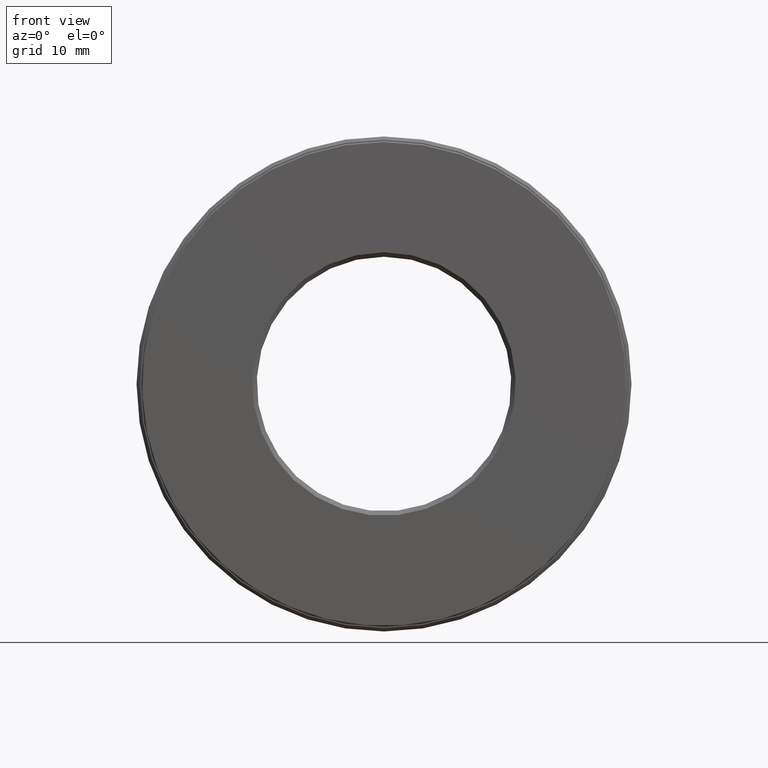
[diagram: clean part render]
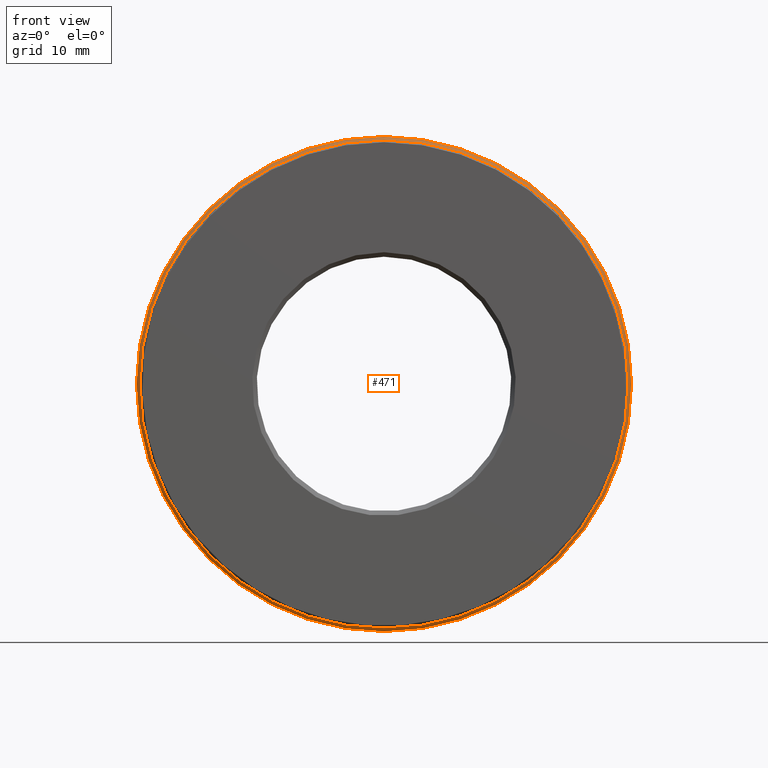
[diagram: same view with one face highlighted and labeled with its STEP entity id]
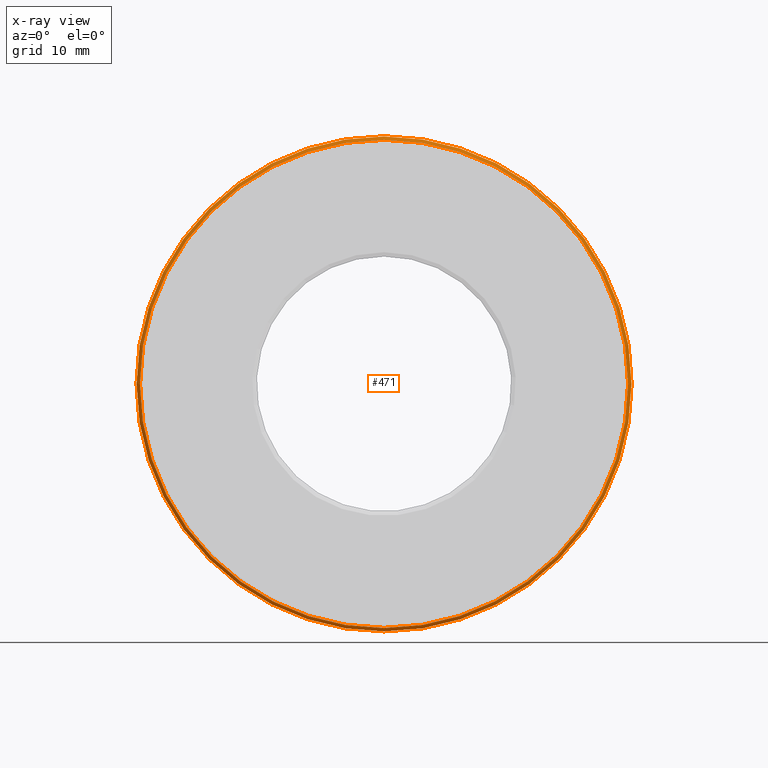
[diagram: x-ray of the same camera — body ghosted, the highlighted face saturated]
A machine part, front view. The second image highlights one B-rep face of the part: STEP entity #471.
The next image is the same camera in x-ray: the body ghosted, the highlighted face saturated — about 0% of this face is hidden behind the body in this view.
In plain terms, the highlighted conical surface has half-angle 45 deg.
Its self-contained STEP definition (entity closure, byte-faithful):
#3 = AXIS2_PLACEMENT_3D ( 'NONE', #149, #12, #103 ) ;
#9 = DIRECTION ( 'NONE',  ( 0.0000000000000000000, 0.0000000000000000000, 1.000000000000000000 ) ) ;
#12 = DIRECTION ( 'NONE',  ( -0.0000000000000000000, 1.000000000000000000, -0.0000000000000000000 ) ) ;
#43 = DIRECTION ( 'NONE',  ( -0.0000000000000000000, 1.000000000000000000, -0.0000000000000000000 ) ) ;
#52 = FACE_BOUND ( 'NONE', #156, .T. ) ;
#69 = CONICAL_SURFACE ( 'NONE', #3, 1.078750000000000100, 0.7853981633974438400 ) ;
#80 = ORIENTED_EDGE ( 'NONE', *, *, #220, .T. ) ;
#83 = EDGE_CURVE ( 'NONE', #314, #314, #389, .T. ) ;
#103 = DIRECTION ( 'NONE',  ( 0.0000000000000000000, 0.0000000000000000000, 1.000000000000000000 ) ) ;
#149 = CARTESIAN_POINT ( 'NONE',  ( 0.0000000000000000000, -6.616194359655631800E-017, 0.0000000000000000000 ) ) ;
#156 = EDGE_LOOP ( 'NONE', ( #80 ) ) ;
#220 = EDGE_CURVE ( 'NONE', #415, #415, #360, .T. ) ;
#284 = ORIENTED_EDGE ( 'NONE', *, *, #83, .F. ) ;
#287 = DIRECTION ( 'NONE',  ( -0.0000000000000000000, 1.000000000000000000, -0.0000000000000000000 ) ) ;
#298 = AXIS2_PLACEMENT_3D ( 'NONE', #400, #43, #461 ) ;
#301 = EDGE_LOOP ( 'NONE', ( #284 ) ) ;
#314 = VERTEX_POINT ( 'NONE', #388 ) ;
#345 = FACE_OUTER_BOUND ( 'NONE', #301, .T. ) ;
#346 = CARTESIAN_POINT ( 'NONE',  ( 0.0000000000000000000, -6.616194359655631800E-017, 1.078750000000000100 ) ) ;
#360 = CIRCLE ( 'NONE', #553, 1.078750000000000100 ) ;
#364 = CARTESIAN_POINT ( 'NONE',  ( 0.0000000000000000000, -6.616194359655631800E-017, 0.0000000000000000000 ) ) ;
#388 = CARTESIAN_POINT ( 'NONE',  ( 0.0000000000000000000, 0.01500000000000004500, 1.093750000000000000 ) ) ;
#389 = CIRCLE ( 'NONE', #298, 1.093750000000000000 ) ;
#400 = CARTESIAN_POINT ( 'NONE',  ( 0.0000000000000000000, 0.01500000000000004500, 0.0000000000000000000 ) ) ;
#415 = VERTEX_POINT ( 'NONE', #346 ) ;
#461 = DIRECTION ( 'NONE',  ( 0.0000000000000000000, 0.0000000000000000000, 1.000000000000000000 ) ) ;
#471 = ADVANCED_FACE ( 'NONE', ( #345, #52 ), #69, .T. ) ;
#553 = AXIS2_PLACEMENT_3D ( 'NONE', #364, #287, #9 ) ;